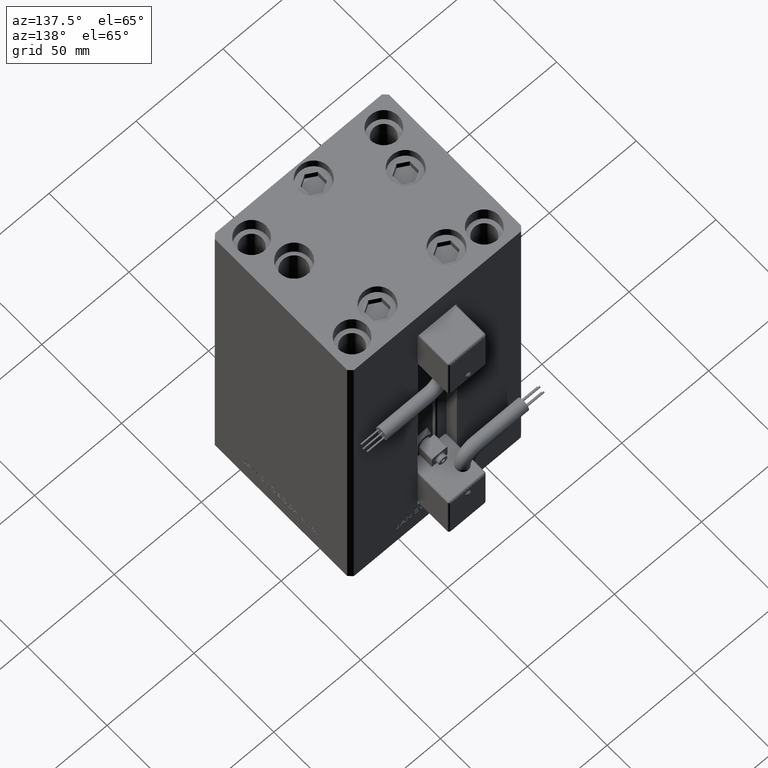
[diagram: clean part render]
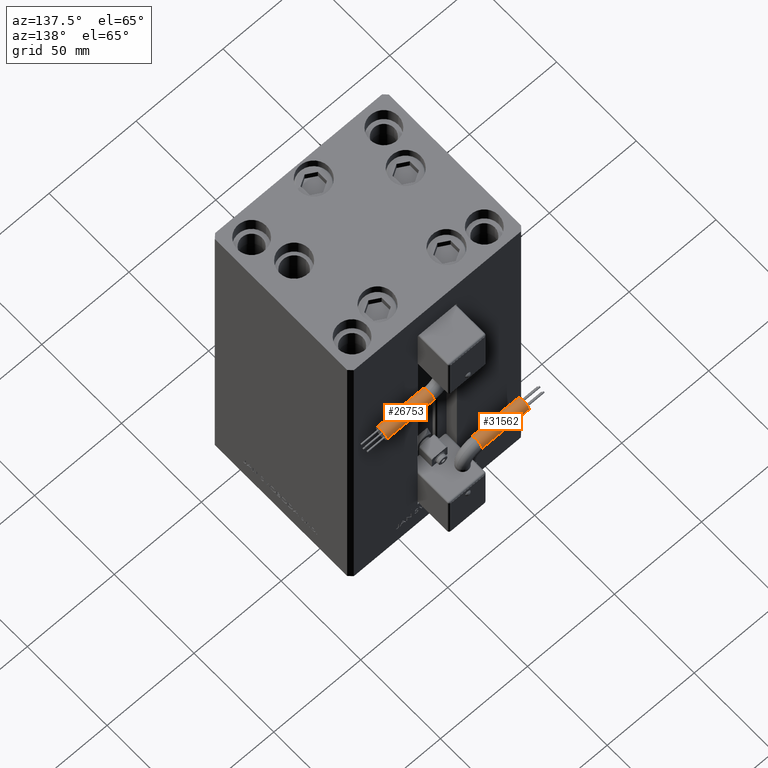
[diagram: same view with one multi-face feature highlighted, each face labeled with its STEP entity id]
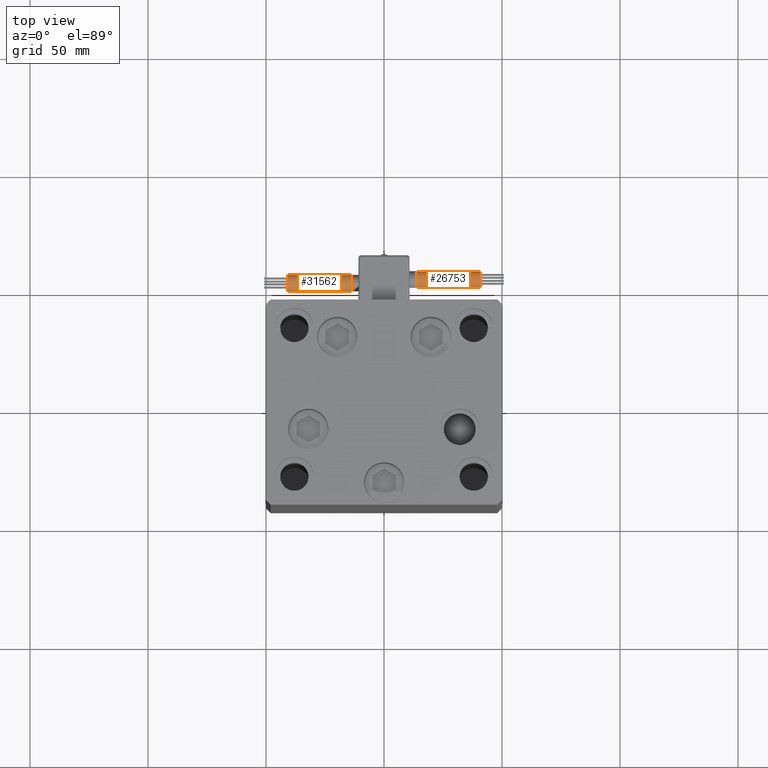
[diagram: same view with one multi-face feature highlighted, each face labeled with its STEP entity id]
A machine part, auxiliary view. The highlighted faces form ONE feature: a constant-radius fillet chain: 2 tangent blend faces with common blend radius 3.5 mm. The faces share edges in the B-rep.
A second angle (top view) of the same feature is appended — it is thin or edge-on in the first view.
Their STEP definitions:
[1] entity #26753 (Cylinder):
#223 = AXIS2_PLACEMENT_3D ( 'NONE', #18726, #26876, #14371 ) ;
#295 = EDGE_CURVE ( 'NONE', #3873, #37378, #41328, .T. ) ;
#2610 = ORIENTED_EDGE ( 'NONE', *, *, #32535, .T. ) ;
#3873 = VERTEX_POINT ( 'NONE', #30018 ) ;
#4093 = CARTESIAN_POINT ( 'NONE',  ( 13.80000000000000071, 45.50000000000000711, -65.00000000000000000 ) ) ;
#4106 = CARTESIAN_POINT ( 'NONE',  ( 13.79999999999999893, 38.50000000000000000, -65.00000000000000000 ) ) ;
#5569 = DIRECTION ( 'NONE',  ( 0.000000000000000000, 0.000000000000000000, -1.000000000000000000 ) ) ;
#5899 = VECTOR ( 'NONE', #37247, 1000.000000000000000 ) ;
#6292 = VERTEX_POINT ( 'NONE', #4106 ) ;
#6869 = CARTESIAN_POINT ( 'NONE',  ( 13.79999999999999893, 42.00000000000000000, -65.00000000000000000 ) ) ;
#9219 = CARTESIAN_POINT ( 'NONE',  ( 13.79999999999999893, 41.99999999999999289, -61.50000000000000000 ) ) ;
#9975 = EDGE_LOOP ( 'NONE', ( #44726, #26186, #2610, #25227, #38503 ) ) ;
#10615 = EDGE_CURVE ( 'NONE', #3873, #34969, #51769, .T. ) ;
#10944 = DIRECTION ( 'NONE',  ( -4.956352788505158337E-16, -1.000000000000000000, 0.000000000000000000 ) ) ;
#11463 = CIRCLE ( 'NONE', #14049, 3.500000000000003109 ) ;
#12798 = LINE ( 'NONE', #38069, #51845 ) ;
#13148 = EDGE_CURVE ( 'NONE', #6292, #27261, #12798, .T. ) ;
#14049 = AXIS2_PLACEMENT_3D ( 'NONE', #52384, #36307, #14567 ) ;
#14371 = DIRECTION ( 'NONE',  ( 0.000000000000000000, 0.000000000000000000, -1.000000000000000000 ) ) ;
#14567 = DIRECTION ( 'NONE',  ( 0.000000000000000000, 0.000000000000000000, -1.000000000000000000 ) ) ;
#16136 = AXIS2_PLACEMENT_3D ( 'NONE', #34922, #38987, #5569 ) ;
#18726 = CARTESIAN_POINT ( 'NONE',  ( 13.79999999999999893, 42.00000000000000000, -65.00000000000000000 ) ) ;
#20765 = CARTESIAN_POINT ( 'NONE',  ( 40.80000000000000426, 45.50000000000000711, -65.00000000000000000 ) ) ;
#25227 = ORIENTED_EDGE ( 'NONE', *, *, #13148, .T. ) ;
#26186 = ORIENTED_EDGE ( 'NONE', *, *, #10615, .T. ) ;
#26753 = ADVANCED_FACE ( 'NONE', ( #36752 ), #48730, .T. ) ;
#26876 = DIRECTION ( 'NONE',  ( 1.000000000000000000, 0.000000000000000000, 2.220446049250000002E-16 ) ) ;
#27261 = VERTEX_POINT ( 'NONE', #50794 ) ;
#30018 = CARTESIAN_POINT ( 'NONE',  ( 13.79999999999999893, 45.50000000000000711, -65.00000000000000000 ) ) ;
#32535 = EDGE_CURVE ( 'NONE', #34969, #6292, #42762, .T. ) ;
#34922 = CARTESIAN_POINT ( 'NONE',  ( 13.79999999999999893, 42.00000000000000000, -65.00000000000000000 ) ) ;
#34969 = VERTEX_POINT ( 'NONE', #9219 ) ;
#36307 = DIRECTION ( 'NONE',  ( 1.000000000000000000, 0.000000000000000000, 2.220446049250000002E-16 ) ) ;
#36752 = FACE_OUTER_BOUND ( 'NONE', #9975, .T. ) ;
#37247 = DIRECTION ( 'NONE',  ( 1.000000000000000000, -2.599999999999999847E-16, 2.220446049250000002E-16 ) ) ;
#37378 = VERTEX_POINT ( 'NONE', #20765 ) ;
#38069 = CARTESIAN_POINT ( 'NONE',  ( 13.79999999999999716, 38.50000000000000000, -65.00000000000000000 ) ) ;
#38503 = ORIENTED_EDGE ( 'NONE', *, *, #41639, .F. ) ;
#38987 = DIRECTION ( 'NONE',  ( 1.000000000000000000, 0.000000000000000000, 2.220446049250000002E-16 ) ) ;
#39761 = DIRECTION ( 'NONE',  ( 1.000000000000000000, -2.599999999999999847E-16, 2.220446049250000002E-16 ) ) ;
#41328 = LINE ( 'NONE', #4093, #5899 ) ;
#41639 = EDGE_CURVE ( 'NONE', #37378, #27261, #11463, .T. ) ;
#42762 = CIRCLE ( 'NONE', #223, 3.500000000000003109 ) ;
#44726 = ORIENTED_EDGE ( 'NONE', *, *, #295, .F. ) ;
#45292 = AXIS2_PLACEMENT_3D ( 'NONE', #6869, #39761, #10944 ) ;
#48730 = CYLINDRICAL_SURFACE ( 'NONE', #45292, 3.500000000000003109 ) ;
#50051 = DIRECTION ( 'NONE',  ( 1.000000000000000000, -2.599999999999999847E-16, 2.220446049250000002E-16 ) ) ;
#50794 = CARTESIAN_POINT ( 'NONE',  ( 40.80000000000000426, 38.50000000000000000, -65.00000000000000000 ) ) ;
#51769 = CIRCLE ( 'NONE', #16136, 3.500000000000003109 ) ;
#51845 = VECTOR ( 'NONE', #50051, 1000.000000000000000 ) ;
#52384 = CARTESIAN_POINT ( 'NONE',  ( 40.80000000000000426, 42.00000000000000000, -65.00000000000000000 ) ) ;
[2] entity #31562 (Cylinder):
#295 = EDGE_CURVE ( 'NONE', #3873, #37378, #41328, .T. ) ;
#1542 = CYLINDRICAL_SURFACE ( 'NONE', #4539, 3.500000000000003109 ) ;
#3873 = VERTEX_POINT ( 'NONE', #30018 ) ;
#4093 = CARTESIAN_POINT ( 'NONE',  ( 13.80000000000000071, 45.50000000000000711, -65.00000000000000000 ) ) ;
#4106 = CARTESIAN_POINT ( 'NONE',  ( 13.79999999999999893, 38.50000000000000000, -65.00000000000000000 ) ) ;
#4539 = AXIS2_PLACEMENT_3D ( 'NONE', #12976, #9419, #42592 ) ;
#5899 = VECTOR ( 'NONE', #37247, 1000.000000000000000 ) ;
#6292 = VERTEX_POINT ( 'NONE', #4106 ) ;
#8334 = EDGE_CURVE ( 'NONE', #42857, #3873, #43647, .T. ) ;
#8655 = EDGE_CURVE ( 'NONE', #27261, #37378, #40399, .T. ) ;
#9419 = DIRECTION ( 'NONE',  ( 1.000000000000000000, -2.599999999999999847E-16, 2.220446049250000002E-16 ) ) ;
#11705 = AXIS2_PLACEMENT_3D ( 'NONE', #28437, #16201, #28702 ) ;
#12798 = LINE ( 'NONE', #38069, #51845 ) ;
#12976 = CARTESIAN_POINT ( 'NONE',  ( 13.79999999999999893, 42.00000000000000000, -65.00000000000000000 ) ) ;
#13148 = EDGE_CURVE ( 'NONE', #6292, #27261, #12798, .T. ) ;
#14508 = DIRECTION ( 'NONE',  ( 1.000000000000000000, 0.000000000000000000, 2.220446049250000002E-16 ) ) ;
#16201 = DIRECTION ( 'NONE',  ( 1.000000000000000000, 0.000000000000000000, 2.220446049250000002E-16 ) ) ;
#20218 = AXIS2_PLACEMENT_3D ( 'NONE', #40474, #20871, #49964 ) ;
#20765 = CARTESIAN_POINT ( 'NONE',  ( 40.80000000000000426, 45.50000000000000711, -65.00000000000000000 ) ) ;
#20871 = DIRECTION ( 'NONE',  ( 1.000000000000000000, 0.000000000000000000, 2.220446049250000002E-16 ) ) ;
#22659 = CARTESIAN_POINT ( 'NONE',  ( 13.79999999999999893, 42.00000000000000000, -65.00000000000000000 ) ) ;
#25381 = AXIS2_PLACEMENT_3D ( 'NONE', #22659, #14508, #35711 ) ;
#26787 = ORIENTED_EDGE ( 'NONE', *, *, #13148, .F. ) ;
#27261 = VERTEX_POINT ( 'NONE', #50794 ) ;
#28437 = CARTESIAN_POINT ( 'NONE',  ( 40.80000000000000426, 42.00000000000000000, -65.00000000000000000 ) ) ;
#28702 = DIRECTION ( 'NONE',  ( 0.000000000000000000, 0.000000000000000000, -1.000000000000000000 ) ) ;
#30018 = CARTESIAN_POINT ( 'NONE',  ( 13.79999999999999893, 45.50000000000000711, -65.00000000000000000 ) ) ;
#31562 = ADVANCED_FACE ( 'NONE', ( #38777 ), #1542, .T. ) ;
#34066 = CIRCLE ( 'NONE', #25381, 3.500000000000003109 ) ;
#34743 = ORIENTED_EDGE ( 'NONE', *, *, #41981, .T. ) ;
#35711 = DIRECTION ( 'NONE',  ( 0.000000000000000000, 0.000000000000000000, -1.000000000000000000 ) ) ;
#37247 = DIRECTION ( 'NONE',  ( 1.000000000000000000, -2.599999999999999847E-16, 2.220446049250000002E-16 ) ) ;
#37378 = VERTEX_POINT ( 'NONE', #20765 ) ;
#37619 = ORIENTED_EDGE ( 'NONE', *, *, #8655, .F. ) ;
#37630 = CARTESIAN_POINT ( 'NONE',  ( 13.79999999999999893, 42.00000000000000000, -68.50000000000000000 ) ) ;
#38069 = CARTESIAN_POINT ( 'NONE',  ( 13.79999999999999716, 38.50000000000000000, -65.00000000000000000 ) ) ;
#38777 = FACE_OUTER_BOUND ( 'NONE', #40694, .T. ) ;
#40399 = CIRCLE ( 'NONE', #11705, 3.500000000000003109 ) ;
#40474 = CARTESIAN_POINT ( 'NONE',  ( 13.79999999999999893, 42.00000000000000000, -65.00000000000000000 ) ) ;
#40694 = EDGE_LOOP ( 'NONE', ( #34743, #43161, #53343, #37619, #26787 ) ) ;
#41328 = LINE ( 'NONE', #4093, #5899 ) ;
#41981 = EDGE_CURVE ( 'NONE', #6292, #42857, #34066, .T. ) ;
#42592 = DIRECTION ( 'NONE',  ( -4.956352788505158337E-16, -1.000000000000000000, 0.000000000000000000 ) ) ;
#42857 = VERTEX_POINT ( 'NONE', #37630 ) ;
#43161 = ORIENTED_EDGE ( 'NONE', *, *, #8334, .T. ) ;
#43647 = CIRCLE ( 'NONE', #20218, 3.500000000000003109 ) ;
#49964 = DIRECTION ( 'NONE',  ( 0.000000000000000000, 0.000000000000000000, -1.000000000000000000 ) ) ;
#50051 = DIRECTION ( 'NONE',  ( 1.000000000000000000, -2.599999999999999847E-16, 2.220446049250000002E-16 ) ) ;
#50794 = CARTESIAN_POINT ( 'NONE',  ( 40.80000000000000426, 38.50000000000000000, -65.00000000000000000 ) ) ;
#51845 = VECTOR ( 'NONE', #50051, 1000.000000000000000 ) ;
#53343 = ORIENTED_EDGE ( 'NONE', *, *, #295, .T. ) ;